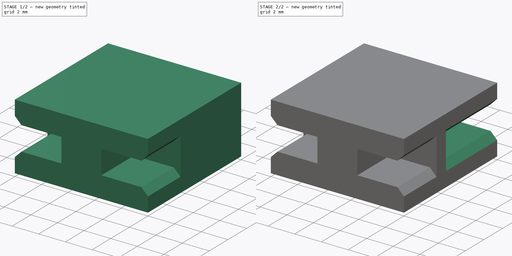
[diagram: build sequence overview — one tinted view per stage of 2, left to right]
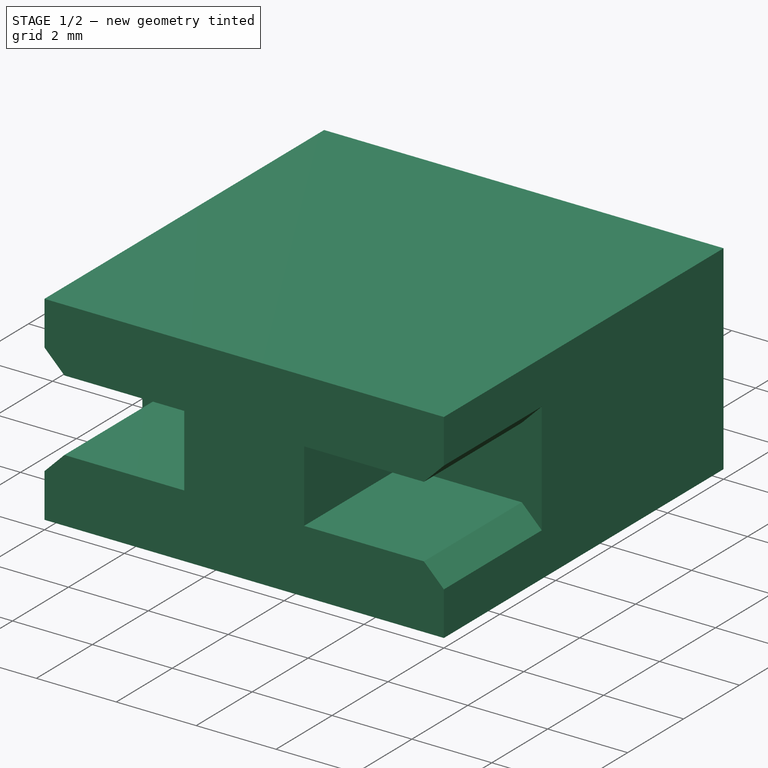
[diagram: stage 1 of 2 — iso view after this stage's code; geometry added in this stage tinted green]
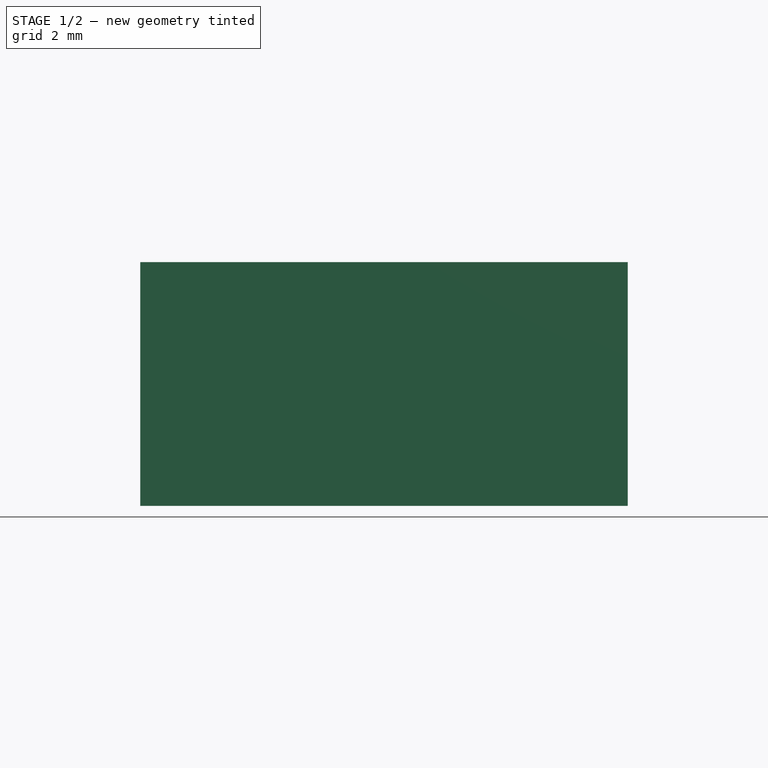
[diagram: stage 1 of 2 — front view after this stage's code; geometry added in this stage tinted green]
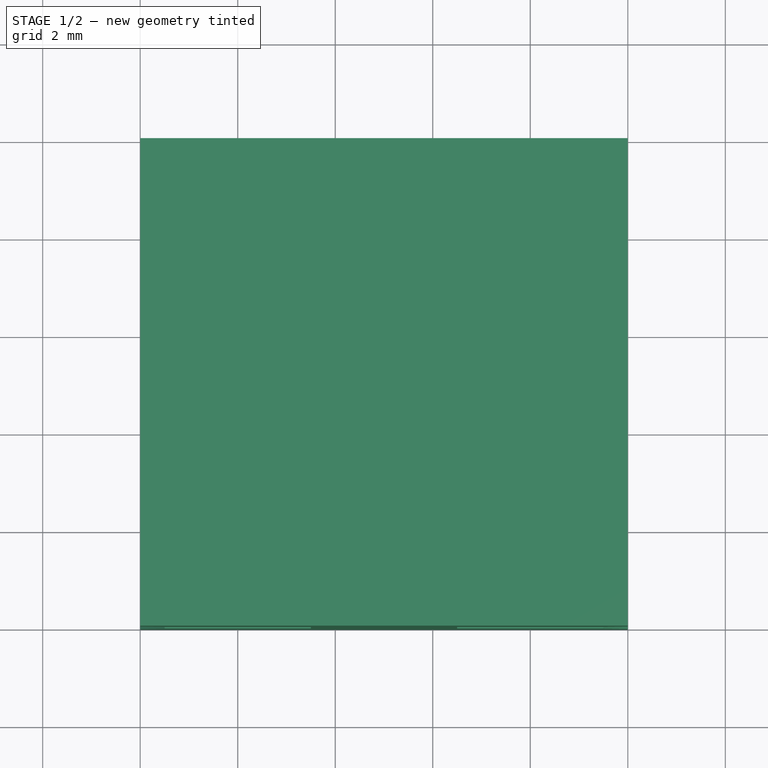
[diagram: stage 1 of 2 — top view after this stage's code; geometry added in this stage tinted green]
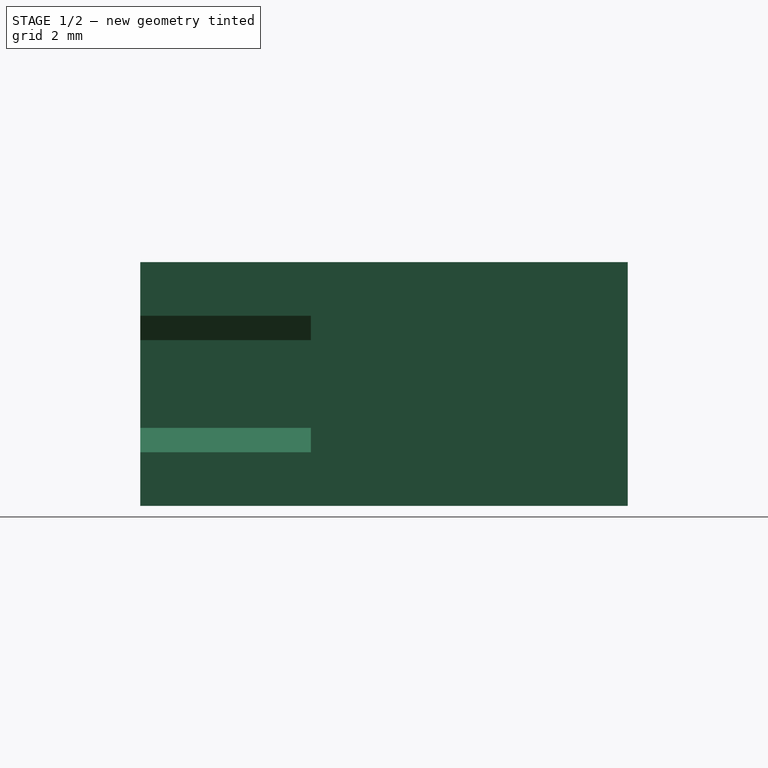
[diagram: stage 1 of 2 — right view after this stage's code; geometry added in this stage tinted green]
FCSTD DOCUMENT  (FreeCAD 0.20R26155 (Git))
Label: KYOCERA AVX 009159010061911
License: All rights reserved
LicenseURL: http://en.wikipedia.org/wiki/All_rights_reserved
objects: Sketcher::SketchObject×4, PartDesign::Pocket×3, PartDesign::Pad×1, PartDesign::Body×1
note: 13 computed .brp shape members not serialized (recipe doc carries the construction recipe); baked Part::Feature solids carry a one-line shape summary decoded from their .brp

FEATURE [Sketcher::SketchObject] Sketch
  FullyConstrained = true
  MapMode = 5
  Support = -> [XY_Plane]
  sketch-geometry (4):
    g0: LineSegment StartX=0 StartY=0 StartZ=0 EndX=10 EndY=0 EndZ=0
    g1: LineSegment StartX=10 StartY=0 StartZ=0 EndX=10 EndY=10 EndZ=0
    g2: LineSegment StartX=10 StartY=10 StartZ=0 EndX=0 EndY=10 EndZ=0
    g3: LineSegment StartX=0 StartY=10 StartZ=0 EndX=0 EndY=0 EndZ=0
  constraints (11):
    c: Coincident(g0,g1)
    c: Coincident(g1,g2)
    c: Coincident(g2,g3)
    c: Coincident(g3,g0)
    c: Horizontal(g0)
    c: Horizontal(g2)
    c: Vertical(g1)
    c: Vertical(g3)
    c: Coincident(g0,g-1)
    c: DistanceX(g2,g2) = 10
    c: Equal(g2,g1)
FEATURE [PartDesign::Pad] Pad
  Direction = (0,0,1)
  Length = 5
  Length2 = 100
  Profile = -> Sketch
  ReferenceAxis = -> Sketch [N_Axis]
  Type = 0
FEATURE [Sketcher::SketchObject] Sketch001
  ExternalGeometry = -> [Pad]
  FullyConstrained = false
  MapMode = 5
  Placement = pos=(0,0,0) rot=(1,0,0;1.5708rad)
  Support = -> [Pad]
  sketch-geometry (20):
    g0: LineSegment StartX=0 StartY=3.9 StartZ=0 EndX=0.5 EndY=3.4 EndZ=0
    g1: LineSegment StartX=0.5 StartY=3.4 StartZ=0 EndX=3.5 EndY=3.4 EndZ=0
    g2: LineSegment StartX=3.5 StartY=3.4 StartZ=0 EndX=3.5 EndY=1.6 EndZ=0
    g3: LineSegment StartX=3.5 StartY=1.6 StartZ=0 EndX=0.5 EndY=1.6 EndZ=0
    g4: LineSegment StartX=0.5 StartY=1.6 StartZ=0 EndX=0 EndY=1.1 EndZ=0
    g5: LineSegment StartX=0 StartY=1.1 StartZ=0 EndX=-0.843027 EndY=1.1 EndZ=0
    g6: LineSegment StartX=-0.843027 StartY=1.1 StartZ=0 EndX=-0.843027 EndY=3.9 EndZ=0
    g7: LineSegment StartX=-0.843027 StartY=3.9 StartZ=0 EndX=0 EndY=3.9 EndZ=0
    g8: GeomPoint X=10 Y=2.5 Z=0
    g9: LineSegment StartX=10 StartY=2.5 StartZ=0 EndX=0 EndY=2.5 EndZ=0
    g10: GeomPoint X=3.5 Y=2.5 Z=0
    g11: LineSegment StartX=10.9557 StartY=3.9 StartZ=0 EndX=10 EndY=3.9 EndZ=0
    g12: LineSegment StartX=10 StartY=3.9 StartZ=0 EndX=9.5 EndY=3.4 EndZ=0
    g13: LineSegment StartX=9.5 StartY=3.4 StartZ=0 EndX=6.5 EndY=3.4 EndZ=0
    g14: LineSegment StartX=6.5 StartY=3.4 StartZ=0 EndX=6.5 EndY=1.6 EndZ=0
    g15: LineSegment StartX=6.5 StartY=1.6 StartZ=0 EndX=9.5 EndY=1.6 EndZ=0
    g16: LineSegment StartX=9.5 StartY=1.6 StartZ=0 EndX=10 EndY=1.1 EndZ=0
    g17: LineSegment StartX=10 StartY=1.1 StartZ=0 EndX=10.9557 EndY=1.1 EndZ=0
    g18: LineSegment StartX=10.9557 StartY=1.1 StartZ=0 EndX=10.9557 EndY=3.9 EndZ=0
    g19: GeomPoint X=6.5 Y=2.5 Z=0
  constraints (52):
    c: PointOnObject(g0,g-2)
    c: Coincident(g0,g1)
    c: Horizontal(g1)
    c: Coincident(g1,g2)
    c: Vertical(g2)
    c: Coincident(g2,g3)
    c: Horizontal(g3)
    c: Coincident(g3,g4)
    c: PointOnObject(g4,g-2)
    c: Coincident(g4,g5)
    c: Horizontal(g5)
    c: Coincident(g5,g6)
    c: Vertical(g6)
    c: Coincident(g6,g7)
    c: Coincident(g7,g0)
    c: Horizontal(g7)
    c: DistanceX(g4,g2) = 3.5
    c: DistanceY(g2,g2) = 1.8
    c: Symmetric(g-4,g-4,g8)
    c: Coincident(g9,g8)
    c: PointOnObject(g9,g-2)
    c: Horizontal(g9)
    c: Symmetric(g2,g2,g10)
    c: PointOnObject(g10,g9)
    c: Angle(g0) = -0.785398
    c: Angle(g4) = -2.35619
    c: PointOnObject(g11,g-4)
    c: Horizontal(g11)
    c: Coincident(g11,g12)
    c: Coincident(g12,g13)
    c: Horizontal(g13)
    c: Coincident(g13,g14)
    c: Vertical(g14)
    c: Coincident(g14,g15)
    c: Coincident(g15,g16)
    c: PointOnObject(g16,g-4)
    c: Coincident(g16,g17)
    c: Horizontal(g17)
    c: Coincident(g17,g18)
    c: Coincident(g18,g11)
    c: Vertical(g18)
    c: Horizontal(g15)
    c: DistanceY(g14,g14) = 1.8
    c: Symmetric(g14,g14,g19)
    c: PointOnObject(g19,g9)
    c: DistanceX(g13,g-4) = 3.5
    c: Angle(g12) = -2.35619
    c: Angle(g16) = -0.785398
    c: DistanceX(g12,g-4) = 0.5
    c: DistanceX(g15,g-4) = 0.5
    c: DistanceX(g-3,g0) = 0.5
    c: DistanceX(g-1,g3) = 0.5
FEATURE [PartDesign::Pocket] Pocket
  BaseFeature = -> Pad
  Length = 3.5
  Length2 = 100
  Profile = -> Sketch001
  Type = 0
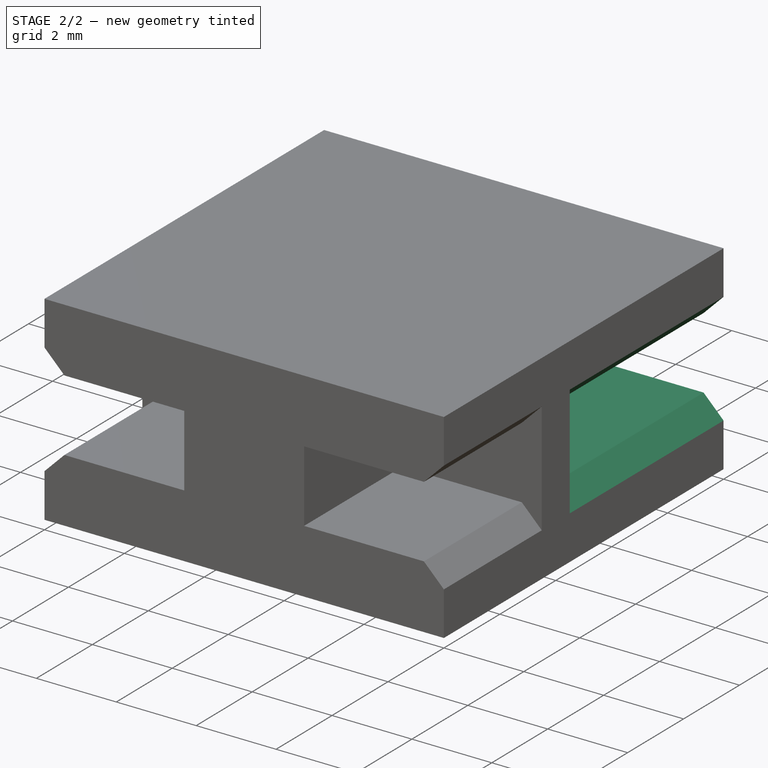
[diagram: stage 2 of 2 — iso view after this stage's code; geometry added in this stage tinted green]
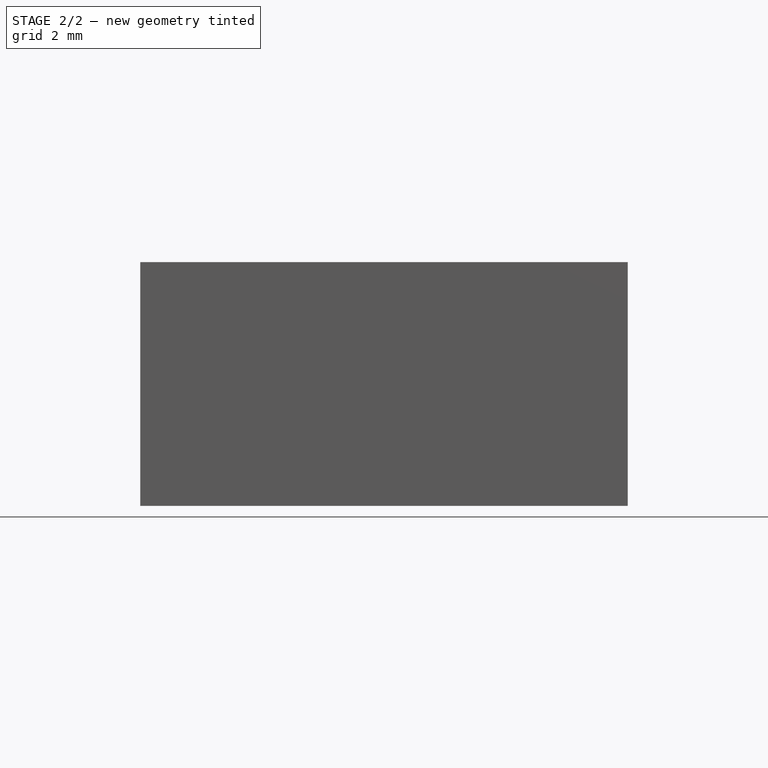
[diagram: stage 2 of 2 — front view after this stage's code; geometry added in this stage tinted green]
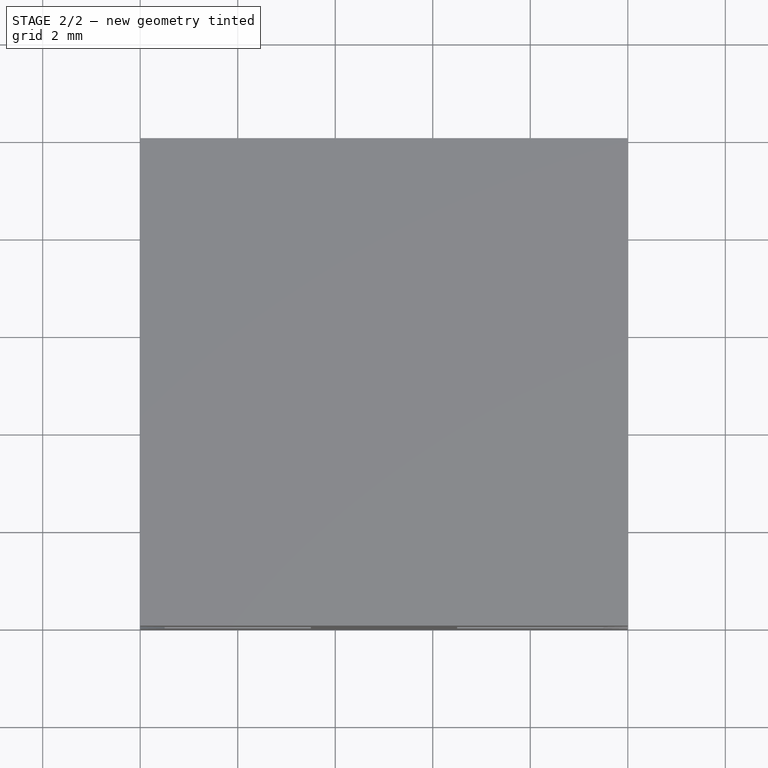
[diagram: stage 2 of 2 — top view after this stage's code; geometry added in this stage tinted green]
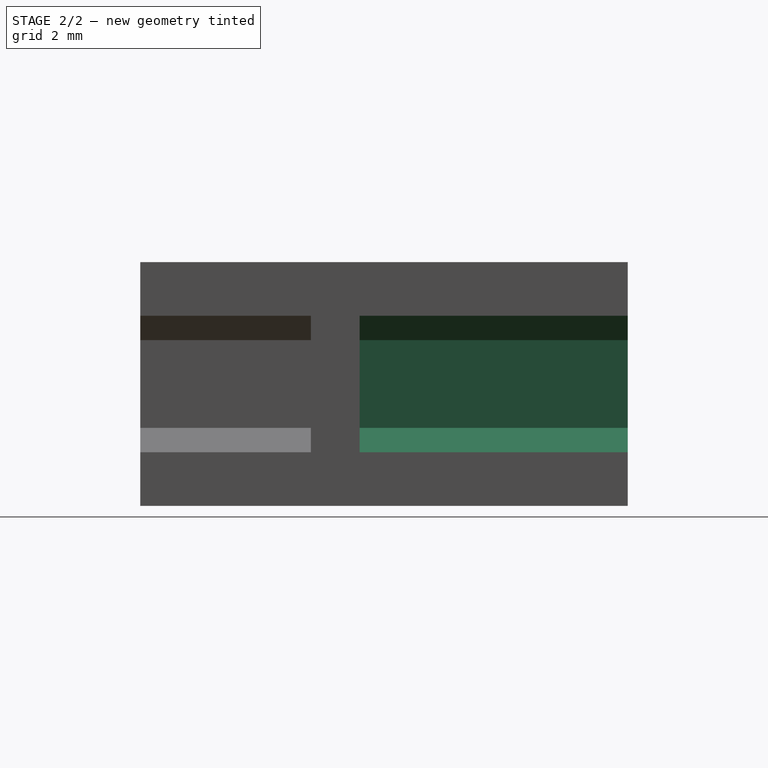
[diagram: stage 2 of 2 — right view after this stage's code; geometry added in this stage tinted green]
FEATURE [Sketcher::SketchObject] Sketch002
  ExternalGeometry = -> [Pocket]
  FullyConstrained = false
  MapMode = 5
  Placement = pos=(0,10,0) rot=(0,0.707107,0.707107;3.14159rad)
  Support = -> [Pocket]
  sketch-geometry (20):
    g0: LineSegment StartX=-11.1308 StartY=3.9 StartZ=0 EndX=-10 EndY=3.9 EndZ=0
    g1: LineSegment StartX=-10 StartY=3.9 StartZ=0 EndX=-9.5 EndY=3.4 EndZ=0
    g2: LineSegment StartX=-9.5 StartY=3.4 StartZ=0 EndX=-6.5 EndY=3.4 EndZ=0
    g3: LineSegment StartX=-6.5 StartY=3.4 StartZ=0 EndX=-6.5 EndY=1.6 EndZ=0
    g4: LineSegment StartX=-6.5 StartY=1.6 StartZ=0 EndX=-9.5 EndY=1.6 EndZ=0
    g5: LineSegment StartX=-9.5 StartY=1.6 StartZ=0 EndX=-10 EndY=1.1 EndZ=0
    g6: LineSegment StartX=-10 StartY=1.1 StartZ=0 EndX=-11.1814 EndY=1.1 EndZ=0
    g7: LineSegment StartX=-11.1814 StartY=1.1 StartZ=0 EndX=-11.1814 EndY=3.86027 EndZ=0
    g8: LineSegment StartX=-11.1814 StartY=3.86027 StartZ=0 EndX=-11.1308 EndY=3.9 EndZ=0
    g9: LineSegment StartX=-3.5 StartY=3.4 StartZ=0 EndX=-0.5 EndY=3.4 EndZ=0
    g10: LineSegment StartX=-0.5 StartY=3.4 StartZ=0 EndX=0 EndY=3.9 EndZ=0
    g11: LineSegment StartX=0 StartY=3.9 StartZ=0 EndX=0.82411 EndY=3.9 EndZ=0
    g12: LineSegment StartX=0.82411 StartY=3.9 StartZ=0 EndX=0.98968 EndY=1.1 EndZ=0
    g13: LineSegment StartX=0.98968 StartY=1.1 StartZ=0 EndX=0 EndY=1.1 EndZ=0
    g14: LineSegment StartX=0 StartY=1.1 StartZ=0 EndX=-0.5 EndY=1.6 EndZ=0
    g15: LineSegment StartX=-0.5 StartY=1.6 StartZ=0 EndX=-3.5 EndY=1.6 EndZ=0
    g16: LineSegment StartX=-3.5 StartY=1.6 StartZ=0 EndX=-3.5 EndY=3.4 EndZ=0
    g17: LineSegment StartX=-10 StartY=2.5 StartZ=0 EndX=0 EndY=2.5 EndZ=0
    g18: GeomPoint X=-6.5 Y=2.5 Z=0
    g19: GeomPoint X=-3.5 Y=2.5 Z=0
  constraints (51):
    c: PointOnObject(g0,g-4)
    c: Horizontal(g0)
    c: Coincident(g0,g1)
    c: Coincident(g1,g2)
    c: Horizontal(g2)
    c: Coincident(g2,g3)
    c: Vertical(g3)
    c: Coincident(g3,g4)
    c: Horizontal(g4)
    c: Coincident(g4,g5)
    c: PointOnObject(g5,g-4)
    c: Coincident(g5,g6)
    c: Horizontal(g6)
    c: Coincident(g6,g7)
    c: Vertical(g7)
    c: Coincident(g7,g8)
    c: Coincident(g8,g0)
    c: Horizontal(g9)
    c: Coincident(g9,g10)
    c: PointOnObject(g10,g-2)
    c: Coincident(g10,g11)
    c: Horizontal(g11)
    c: Coincident(g11,g12)
    c: Coincident(g12,g13)
    c: PointOnObject(g13,g-2)
    c: Horizontal(g13)
    c: Coincident(g13,g14)
    c: Coincident(g14,g15)
    c: Horizontal(g15)
    c: Coincident(g15,g16)
    c: Coincident(g16,g9)
    c: Vertical(g16)
    c: Equal(g3,g16)
    c: DistanceY(g3,g3) = 1.8
    c: PointOnObject(g17,g-2)
    c: Horizontal(g17)
    c: Equal(g1,g14)
    c: Equal(g5,g10)
    c: DistanceX(g2,g9) = 3
    c: Symmetric(g16,g16,g19)
    c: Symmetric(g3,g3,g18)
    c: PointOnObject(g18,g17)
    c: PointOnObject(g19,g17)
    c: Angle(g10) = 0.785398
    c: Angle(g1) = -0.785398
    c: Angle(g5) = -2.35619
    c: Angle(g14) = 2.35619
    c: Equal(g2,g9)
    c: Equal(g14,g10)
    c: DistanceX(g-4,g1) = 0.5
    c: Symmetric(g-4,g-4,g17)
FEATURE [PartDesign::Pocket] Pocket001
  BaseFeature = -> Pocket
  Length = 5.5
  Length2 = 100
  Profile = -> Sketch002
  Type = 0
FEATURE [Sketcher::SketchObject] Sketch003
  FullyConstrained = false
  MapMode = 5
  Placement = pos=(0,0,0) rot=(1,0,0;3.14159rad)
  Support = -> [Pocket001]
  sketch-geometry (3):
    g0: LineSegment StartX=-0.717832 StartY=-0.309342 StartZ=0 EndX=-0.717832 EndY=-1.99202 EndZ=0
    g1: LineSegment StartX=-0.717832 StartY=-1.99202 StartZ=0 EndX=0.739412 EndY=-1.15068 EndZ=0
    g2: LineSegment StartX=0.739412 StartY=-1.15068 StartZ=0 EndX=-0.717832 EndY=-0.309342 EndZ=0
  constraints (6):
    c: Vertical(g0)
    c: Coincident(g0,g1)
    c: Coincident(g1,g2)
    c: Coincident(g2,g0)
    c: Equal(g2,g1)
    c: Equal(g1,g0)
FEATURE [PartDesign::Pocket] Pocket002
  BaseFeature = -> Pocket001
  Length = 0.25
  Length2 = 100
  Profile = -> Sketch003
  Type = 0
FEATURE [PartDesign::Body] Body
  Group = -> [Sketch,Pad,Sketch001,Pocket,Sketch002,Pocket001,Sketch003,Pocket002]
  Origin = -> Origin
  Tip = -> Pocket002
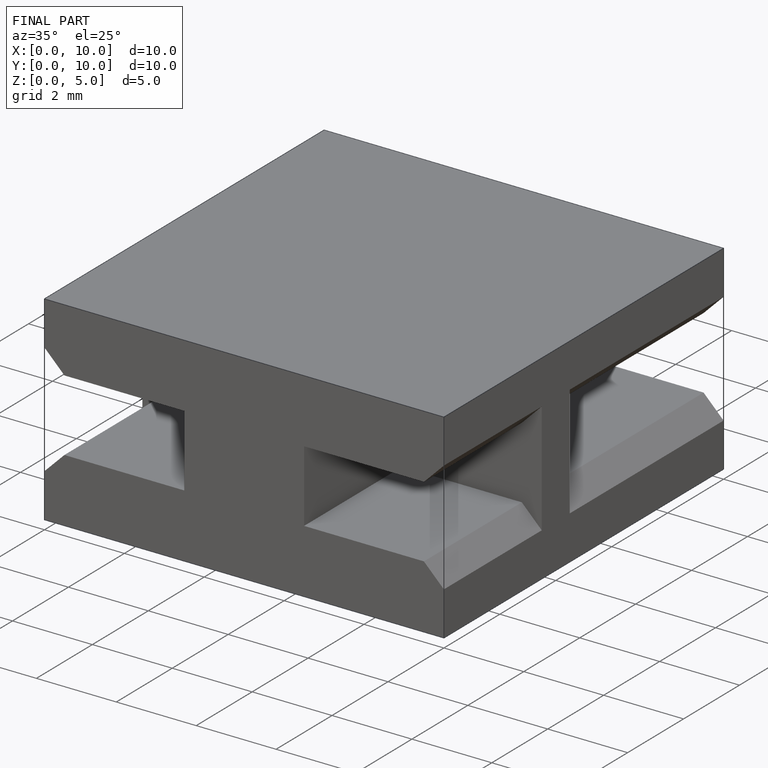
[diagram: finished part — iso view with bounding-box wireframe]
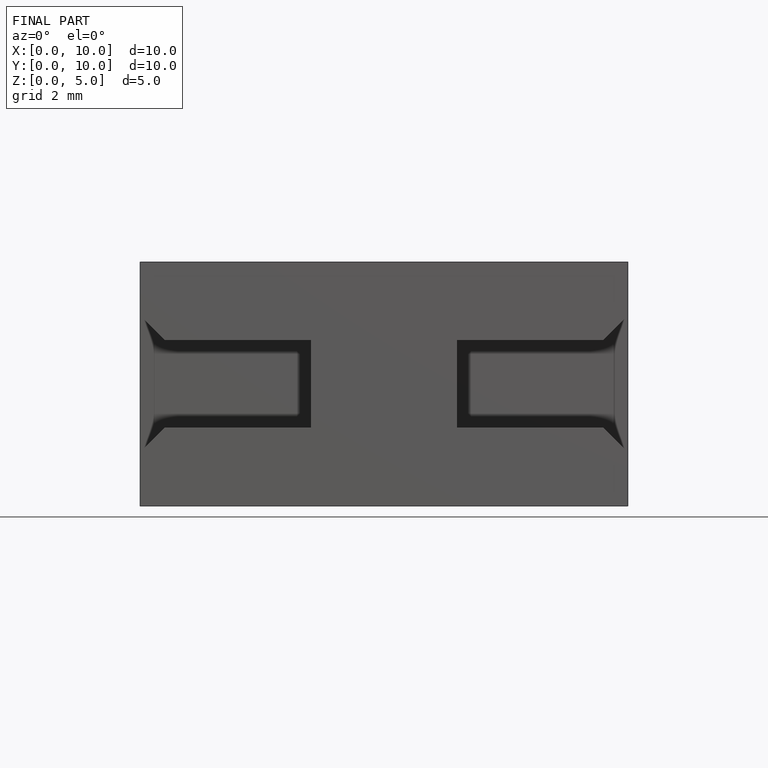
[diagram: finished part — front view with bounding-box wireframe]
